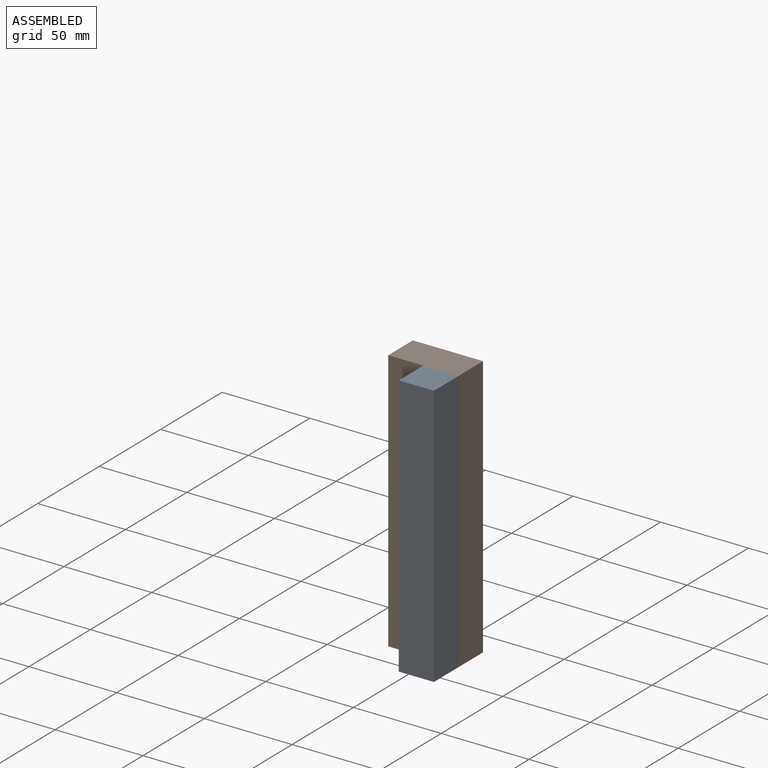
[diagram: assembled view]
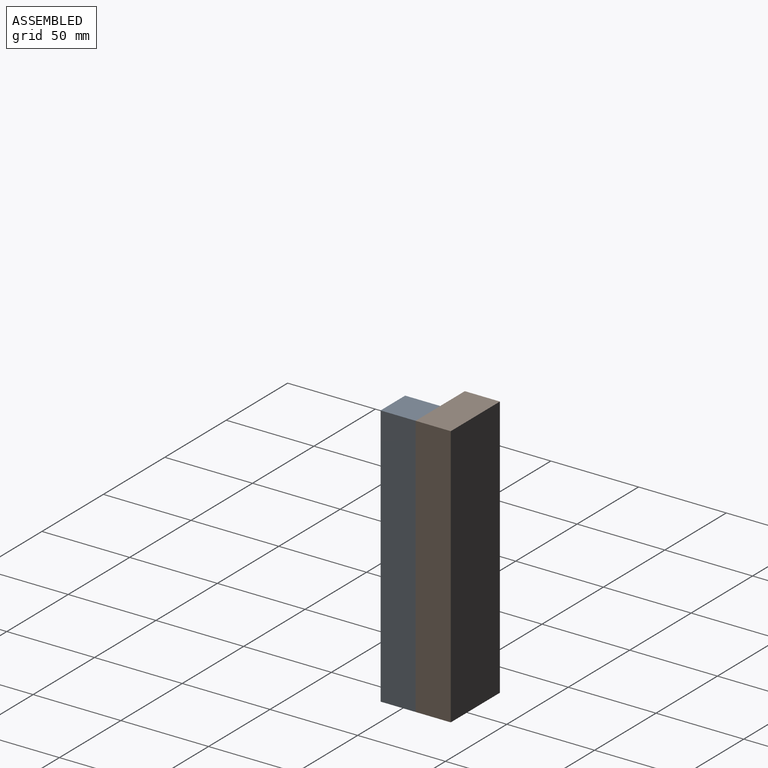
[diagram: assembled view, second angle]
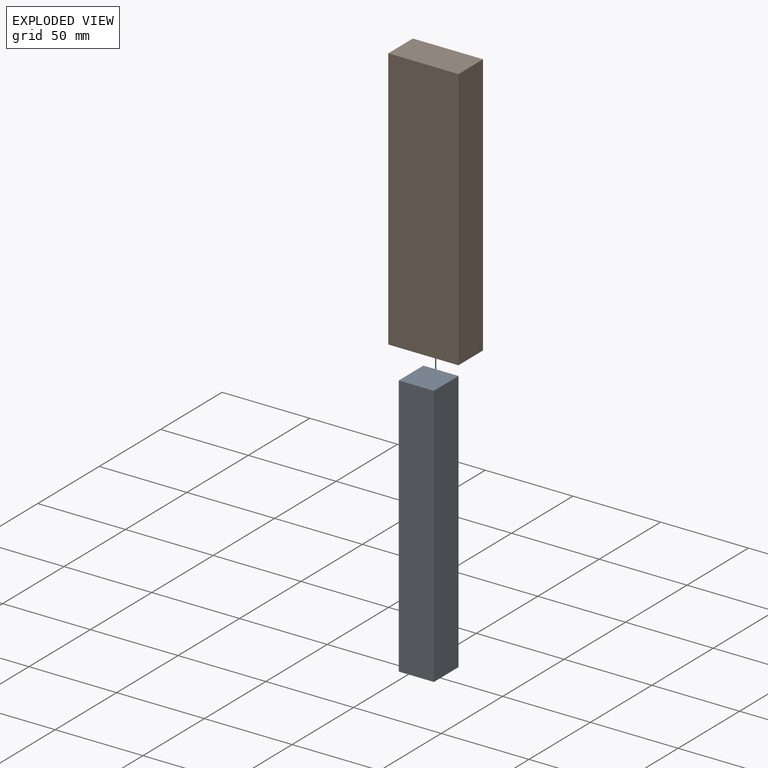
[diagram: exploded view]
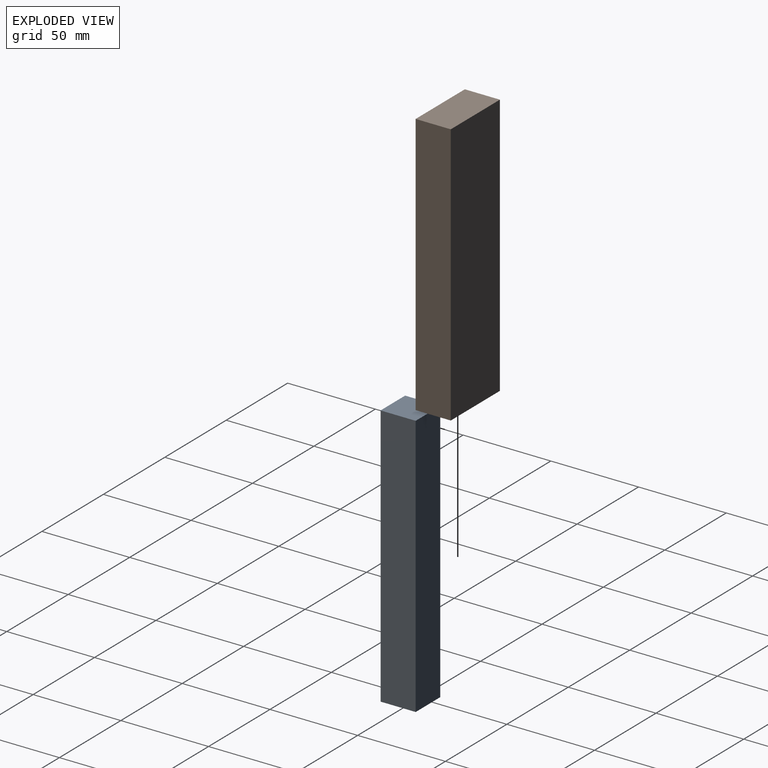
[diagram: exploded view, second angle]
ASSEMBLY  parts=2 mates=2
PART A: 6 faces, bbox 20x20x150 mm
  f0: plane 150x20mm, normal (-1,0,0), area 3000mm2, adj f1,f3,f4,f5
  f1: plane 20x20mm, normal (0,0,-1), area 400mm2, adj f0,f2,f4,f5
  f2: plane 150x20mm, normal (1,0,0), area 3000mm2, adj f1,f3,f4,f5
  f3: plane 20x20mm, normal (0,0,1), area 400mm2, adj f0,f2,f4,f5
  f4: plane 150x20mm, normal (0,-1,0), area 3000mm2, adj f0,f1,f2,f3
  f5: plane 150x20mm, normal (0,1,0), area 3000mm2, adj f0,f1,f2,f3
PART B: 6 faces, bbox 40x20x150 mm
  f0: plane 150x20mm, normal (-1,0,0), area 3000mm2, adj f1,f3,f4,f5
  f1: plane 40x20mm, normal (0,0,-1), area 800mm2, adj f0,f2,f4,f5
  f2: plane 150x20mm, normal (1,0,0), area 3000mm2, adj f1,f3,f4,f5
  f3: plane 40x20mm, normal (0,0,1), area 800mm2, adj f0,f2,f4,f5
  f4: plane 150x40mm, normal (0,-1,0), area 6000mm2, adj f0,f1,f2,f3
  f5: plane 150x40mm, normal (0,1,0), area 6000mm2, adj f0,f1,f2,f3
PLACE A t=(-2.43,10.35,-6.34)mm
PLACE B t=(-22.43,30.35,-6.34)mm
MATE parallel A.f3 <-> B.f3  axis (0,0,1) through (7.57,0.35,143.66)mm
MATE planar A.f5 <-> B.f4  axis (0,1,0) through (7.57,10.35,68.66)mm
